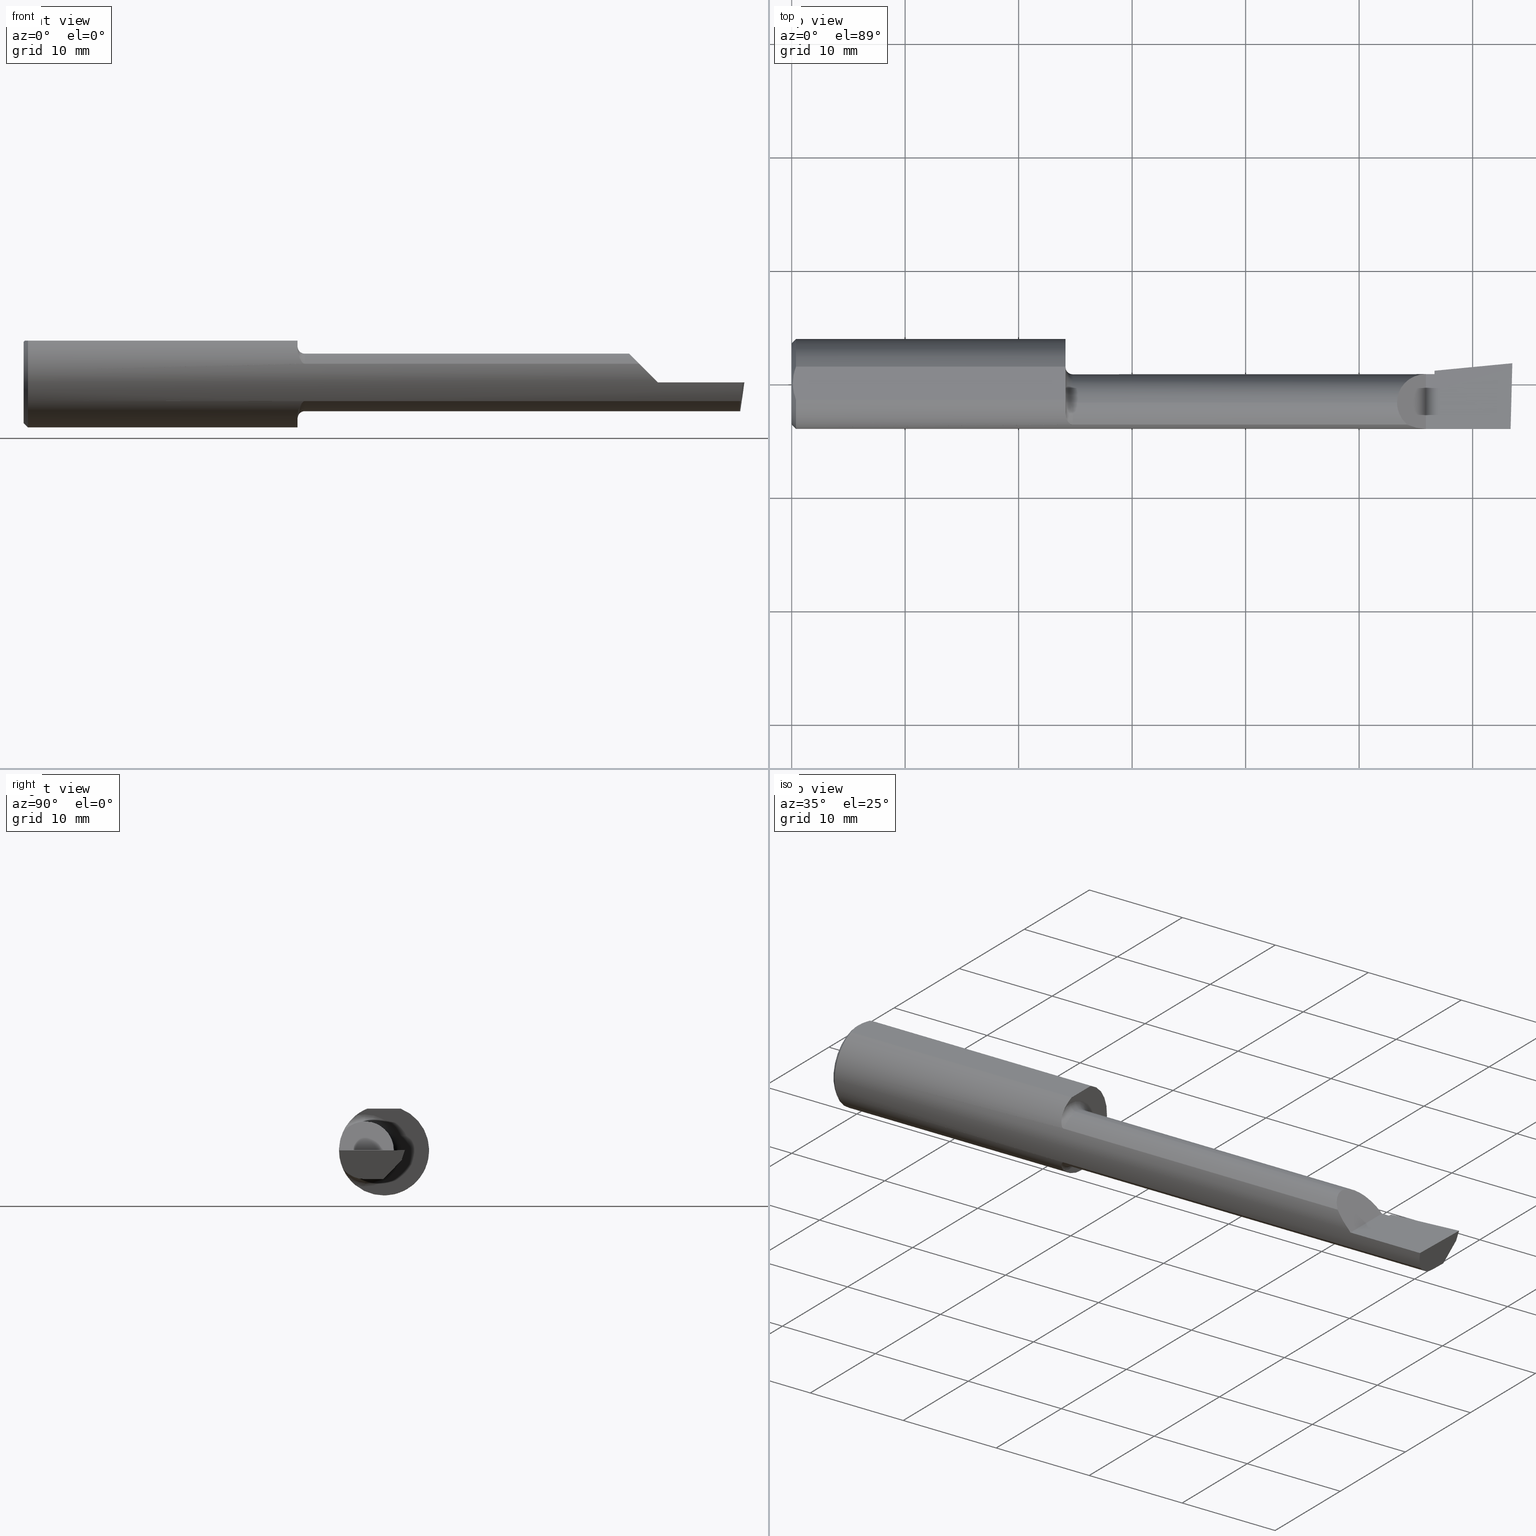
[diagram: canonical four-view strip — front | top / right | iso, engineering-drawing reading convention]
A machine part, canonical four-view strip (front | top / right | iso — engineering-drawing reading convention). The complete STEP part file that produces these views, byte-faithful:
ISO-10303-21;
HEADER;
FILE_DESCRIPTION (( 'STEP AP203' ),
    '1' );
FILE_NAME ('217423-B2301500.STEP',
    '2024-04-25T16:52:27',
    ( '' ),
    ( '' ),
    'SwSTEP 2.0',
    'SolidWorks 2022',
    '' );
FILE_SCHEMA (( 'CONFIG_CONTROL_DESIGN' ));
ENDSEC;

DATA;
#1 = VECTOR ( 'NONE', #458, 39.37007874015748143 ) ;
#2 = LOCAL_TIME ( 9, 52, 27.00000000000000000, #137 ) ;
#3 = FACE_OUTER_BOUND ( 'NONE', #428, .T. ) ;
#4 = CARTESIAN_POINT ( 'NONE',  ( 0.9717256991359958240, -0.1417275062431947175, -0.06543227863119793764 ) ) ;
#5 = ORIENTED_EDGE ( 'NONE', *, *, #26, .F. ) ;
#6 = LINE ( 'NONE', #12, #1 ) ;
#7 = DIMENSIONAL_EXPONENTS ( 1.000000000000000000, 0.000000000000000000, 0.000000000000000000, 0.000000000000000000, 0.000000000000000000, 0.000000000000000000, 0.000000000000000000 ) ;
#8 = CARTESIAN_POINT ( 'NONE',  ( 0.004000000000000238608, 1.884449684559922719E-17, 0.1450999999999999790 ) ) ;
#9 = ORIENTED_EDGE ( 'NONE', *, *, #389, .T. ) ;
#10 = ADVANCED_FACE ( 'NONE', ( #250 ), #425, .F. ) ;
#11 = TOROIDAL_SURFACE ( 'NONE', #427, 0.1248999999999998584, 0.02500000000000000486 ) ;
#12 = CARTESIAN_POINT ( 'NONE',  ( 0.9499999999999999556, 0.2061000000000000332, 0.1450999999999999512 ) ) ;
#13 = LINE ( 'NONE', #237, #269 ) ;
#14 = ORIENTED_EDGE ( 'NONE', *, *, #187, .T. ) ;
#15 = DIRECTION ( 'NONE',  ( 0.000000000000000000, 0.6963153109074924352, 0.7177360153954949196 ) ) ;
#16 = DIRECTION ( 'NONE',  ( 0.000000000000000000, 0.000000000000000000, -1.000000000000000000 ) ) ;
#17 = ORIENTED_EDGE ( 'NONE', *, *, #89, .F. ) ;
#18 = AXIS2_PLACEMENT_3D ( 'NONE', #97, #707, #608 ) ;
#19 = VECTOR ( 'NONE', #675, 39.37007874015748143 ) ;
#20 = MECHANICAL_CONTEXT ( 'NONE', #149, 'mechanical' ) ;
#21 = CARTESIAN_POINT ( 'NONE',  ( 0.9586820903407829997, -0.1330572531291642768, -0.08183785561185233370 ) ) ;
#22 = ORIENTED_EDGE ( 'NONE', *, *, #610, .F. ) ;
#23 = MANIFOLD_SOLID_BREP ( 'Extrude7', #91 ) ;
#24 = PERSON_AND_ORGANIZATION ( #181, #683 ) ;
#25 = AXIS2_PLACEMENT_3D ( 'NONE', #147, #376, #603 ) ;
#26 = EDGE_CURVE ( 'NONE', #582, #37, #449, .T. ) ;
#27 = CARTESIAN_POINT ( 'NONE',  ( 2.491270569402206814, -0.1560999999999999888, -0.02246288137099515872 ) ) ;
#28 = ORIENTED_EDGE ( 'NONE', *, *, #177, .F. ) ;
#29 = CARTESIAN_POINT ( 'NONE',  ( 2.486434241799652778, -0.1419939393939394223, -0.06484544066771577575 ) ) ;
#30 = ORIENTED_EDGE ( 'NONE', *, *, #377, .F. ) ;
#31 = VECTOR ( 'NONE', #329, 39.37007874015748854 ) ;
#32 = APPROVAL_DATE_TIME ( #87, #382 ) ;
#33 = DIRECTION ( 'NONE',  ( 0.000000000000000000, 0.000000000000000000, 1.000000000000000000 ) ) ;
#34 = VERTEX_POINT ( 'NONE', #51 ) ;
#35 = EDGE_CURVE ( 'NONE', #301, #141, #157, .T. ) ;
#36 = PLANE ( 'NONE',  #669 ) ;
#37 = VERTEX_POINT ( 'NONE', #384 ) ;
#38 = CC_DESIGN_PERSON_AND_ORGANIZATION_ASSIGNMENT ( #24, #92, ( #477 ) ) ;
#39 = PRODUCT_DEFINITION_SHAPE ( 'NONE', 'NONE',  #434 ) ;
#40 = EDGE_LOOP ( 'NONE', ( #400, #14, #661, #130 ) ) ;
#41 = DATE_TIME_ROLE ( 'classification_date' ) ;
#42 = CARTESIAN_POINT ( 'NONE',  ( 0.01499999999999999424, 0.000000000000000000, -0.1560999999999999888 ) ) ;
#43 = LOCAL_TIME ( 9, 52, 27.00000000000000000, #598 ) ;
#44 = ORIENTED_EDGE ( 'NONE', *, *, #104, .F. ) ;
#45 = VERTEX_POINT ( 'NONE', #333 ) ;
#46 = CIRCLE ( 'NONE', #651, 0.1560999999999999888 ) ;
#47 = FACE_OUTER_BOUND ( 'NONE', #708, .T. ) ;
#48 = CARTESIAN_POINT ( 'NONE',  ( 2.491576527842699562, -0.2497794236187493022, 6.912943690626119343E-17 ) ) ;
#49 = CARTESIAN_POINT ( 'NONE',  ( 0.000000000000000000, -0.06599999999999998923, -0.09989999999999993330 ) ) ;
#50 = EDGE_CURVE ( 'NONE', #660, #640, #114, .T. ) ;
#51 = CARTESIAN_POINT ( 'NONE',  ( 2.484118579027821294, -0.06599999999999998923, -0.09990000000000000269 ) ) ;
#52 = CARTESIAN_POINT ( 'NONE',  ( 0.01499999999999999424, 0.000000000000000000, -0.1560999999999999888 ) ) ;
#53 = CARTESIAN_POINT ( 'NONE',  ( 0.01499999999999999424, 0.05756040305626779902, 0.1450999999999999512 ) ) ;
#54 = CARTESIAN_POINT ( 'NONE',  ( 0.9520405068644911539, -0.1180407066556271450, 0.1023492120876694778 ) ) ;
#55 = AXIS2_PLACEMENT_3D ( 'NONE', #213, #733, #616 ) ;
#56 = CARTESIAN_POINT ( 'NONE',  ( 2.229999999999999982, -0.06599999999999998923, -0.09990000000000000269 ) ) ;
#57 = EDGE_CURVE ( 'NONE', #660, #189, #378, .T. ) ;
#58 = FACE_OUTER_BOUND ( 'NONE', #374, .T. ) ;
#59 = LINE ( 'NONE', #347, #721 ) ;
#60 = CIRCLE ( 'NONE', #25, 0.1248999999999998584 ) ;
#61 = CARTESIAN_POINT ( 'NONE',  ( 0.9749999999999999778, -0.1419939393939395333, -0.06484544066771551207 ) ) ;
#62 = DIRECTION ( 'NONE',  ( -1.000000000000000000, -0.000000000000000000, -0.000000000000000000 ) ) ;
#63 = VECTOR ( 'NONE', #703, 39.37007874015748143 ) ;
#64 = ORIENTED_EDGE ( 'NONE', *, *, #672, .F. ) ;
#65 = DIRECTION ( 'NONE',  ( -0.06894566448119622548, 0.7160281025913035613, -0.6946583704589933683 ) ) ;
#66 = EDGE_CURVE ( 'NONE', #488, #605, #568, .T. ) ;
#67 = CARTESIAN_POINT ( 'NONE',  ( 2.200000000000000178, -0.2500000000000000555, 9.797174393178826150E-17 ) ) ;
#68 = ORIENTED_EDGE ( 'NONE', *, *, #397, .F. ) ;
#69 = LINE ( 'NONE', #702, #411 ) ;
#70 = CARTESIAN_POINT ( 'NONE',  ( 0.000000000000000000, 1.819825143532964315E-17, 0.1410999999999996146 ) ) ;
#71 = EDGE_CURVE ( 'NONE', #244, #301, #531, .T. ) ;
#72 = EDGE_LOOP ( 'NONE', ( #609, #691, #86, #221, #538, #153 ) ) ;
#73 = AXIS2_PLACEMENT_3D ( 'NONE', #319, #197, #303 ) ;
#74 = LINE ( 'NONE', #580, #281 ) ;
#75 = CARTESIAN_POINT ( 'NONE',  ( 0.9749999999999999778, -0.1419939393939395333, -0.06484544066771551207 ) ) ;
#76 = ORIENTED_EDGE ( 'NONE', *, *, #50, .T. ) ;
#77 = CALENDAR_DATE ( 2024, 25, 4 ) ;
#78 = DIRECTION ( 'NONE',  ( 0.000000000000000000, 0.000000000000000000, -1.000000000000000000 ) ) ;
#79 = ORIENTED_EDGE ( 'NONE', *, *, #527, .F. ) ;
#80 = CONICAL_SURFACE ( 'NONE', #172, 0.1560999999999999888, 0.7853981633974602694 ) ;
#81 = EDGE_CURVE ( 'NONE', #37, #513, #163, .T. ) ;
#82 = CARTESIAN_POINT ( 'NONE',  ( 2.486434241799652778, -0.1419939393939394223, -0.06484544066771577575 ) ) ;
#83 = VERTEX_POINT ( 'NONE', #396 ) ;
#84 = PERSON_AND_ORGANIZATION_ROLE ( 'creator' ) ;
#85 = CARTESIAN_POINT ( 'NONE',  ( 0.9499999999999999556, -0.06599999999999998923, 0.000000000000000000 ) ) ;
#86 = ORIENTED_EDGE ( 'NONE', *, *, #638, .T. ) ;
#87 = DATE_AND_TIME ( #77, #43 ) ;
#88 = CARTESIAN_POINT ( 'NONE',  ( 0.000000000000000000, -0.06599999999999998923, 0.000000000000000000 ) ) ;
#89 = EDGE_CURVE ( 'NONE', #321, #622, #509, .T. ) ;
#90 = VERTEX_POINT ( 'NONE', #388 ) ;
#91 = CLOSED_SHELL ( 'NONE', ( #297, #355, #731, #710, #206, #146, #563, #695, #404, #464, #287, #537, #239, #276, #643, #554, #739, #544, #586, #618, #10 ) ) ;
#92 = PERSON_AND_ORGANIZATION_ROLE ( 'design_owner' ) ;
#93 = AXIS2_PLACEMENT_3D ( 'NONE', #174, #401, #286 ) ;
#94 = CYLINDRICAL_SURFACE ( 'NONE', #591, 0.1560999999999999888 ) ;
#95 = ORIENTED_EDGE ( 'NONE', *, *, #722, .F. ) ;
#96 = VERTEX_POINT ( 'NONE', #278 ) ;
#97 = CARTESIAN_POINT ( 'NONE',  ( 0.000000000000000000, -0.06599999999999998923, 0.000000000000000000 ) ) ;
#98 = ORIENTED_EDGE ( 'NONE', *, *, #672, .T. ) ;
#99 = VERTEX_POINT ( 'NONE', #556 ) ;
#100 = AXIS2_PLACEMENT_3D ( 'NONE', #409, #65, #15 ) ;
#101 = CARTESIAN_POINT ( 'NONE',  ( 0.9630170922746255080, -0.1374043365808048089, 0.07413505991998627087 ) ) ;
#102 = CARTESIAN_POINT ( 'NONE',  ( 1.602499999999999813, -0.1419939393939394223, -0.06484544066771577575 ) ) ;
#103 = PERSON_AND_ORGANIZATION_ROLE ( 'classification_officer' ) ;
#104 = EDGE_CURVE ( 'NONE', #379, #96, #339, .T. ) ;
#105 = DIRECTION ( 'NONE',  ( -1.000000000000000000, -0.000000000000000000, -0.000000000000000000 ) ) ;
#106 = LINE ( 'NONE', #48, #316 ) ;
#107 = CARTESIAN_POINT ( 'NONE',  ( 0.9499999999999999556, -0.06599999999999997535, -0.1248999999999998584 ) ) ;
#108 = CIRCLE ( 'NONE', #520, 0.09989999999999985003 ) ;
#109 = DIRECTION ( 'NONE',  ( 0.000000000000000000, 1.000000000000000000, 0.000000000000000000 ) ) ;
#110 = LINE ( 'NONE', #52, #476 ) ;
#111 = CARTESIAN_POINT ( 'NONE',  ( 0.01499999999999999424, 0.000000000000000000, 0.000000000000000000 ) ) ;
#112 = EDGE_CURVE ( 'NONE', #644, #99, #505, .T. ) ;
#113 = DIRECTION ( 'NONE',  ( -0.09165774897393341725, 0.9519021185660614393, -0.2923717047227302190 ) ) ;
#114 = LINE ( 'NONE', #218, #635 ) ;
#115 = ORIENTED_EDGE ( 'NONE', *, *, #397, .T. ) ;
#116 = EDGE_CURVE ( 'NONE', #96, #379, #447, .T. ) ;
#117 = DIRECTION ( 'NONE',  ( -1.000000000000000000, 0.000000000000000000, -0.000000000000000000 ) ) ;
#118 = LINE ( 'NONE', #300, #241 ) ;
#119 = CIRCLE ( 'NONE', #441, 0.09990000000000000269 ) ;
#120 = CARTESIAN_POINT ( 'NONE',  ( 2.500000000000000000, -0.06599999999999998923, -0.09990000000000000269 ) ) ;
#121 = CARTESIAN_POINT ( 'NONE',  ( 0.9733182172575656210, -0.1419939393939396166, -0.06484544066771549820 ) ) ;
#122 = ORIENTED_EDGE ( 'NONE', *, *, #50, .F. ) ;
#123 = CARTESIAN_POINT ( 'NONE',  ( 0.01499999999999999424, -0.05756040305626774350, 0.1451000000000000068 ) ) ;
#124 = EDGE_CURVE ( 'NONE', #513, #379, #391, .T. ) ;
#125 = VECTOR ( 'NONE', #109, 39.37007874015748143 ) ;
#126 = CARTESIAN_POINT ( 'NONE',  ( 2.229999999999999982, -0.06599999999999998923, 0.000000000000000000 ) ) ;
#127 = ORIENTED_EDGE ( 'NONE', *, *, #279, .F. ) ;
#128 = DIRECTION ( 'NONE',  ( -1.000000000000000000, -0.000000000000000000, -0.000000000000000000 ) ) ;
#129 = DIRECTION ( 'NONE',  ( 1.000000000000000000, 0.000000000000000000, 0.000000000000000000 ) ) ;
#130 = ORIENTED_EDGE ( 'NONE', *, *, #165, .F. ) ;
#131 = CARTESIAN_POINT ( 'NONE',  ( 2.229999999999999982, 0.03390000000000001346, 3.155924005931208275E-16 ) ) ;
#132 = LINE ( 'NONE', #67, #699 ) ;
#133 = ORIENTED_EDGE ( 'NONE', *, *, #444, .F. ) ;
#134 = EDGE_CURVE ( 'NONE', #413, #432, #106, .T. ) ;
#135 = AXIS2_PLACEMENT_3D ( 'NONE', #736, #559, #729 ) ;
#136 = SECURITY_CLASSIFICATION ( '', '', #472 ) ;
#137 = COORDINATED_UNIVERSAL_TIME_OFFSET ( 8, 0, .BEHIND. ) ;
#138 = VERTEX_POINT ( 'NONE', #273 ) ;
#139 = VECTOR ( 'NONE', #198, 39.37007874015748854 ) ;
#140 = DIRECTION ( 'NONE',  ( -1.000000000000000000, -0.000000000000000000, -0.000000000000000000 ) ) ;
#141 = VERTEX_POINT ( 'NONE', #619 ) ;
#142 = DATE_AND_TIME ( #490, #2 ) ;
#143 = EDGE_CURVE ( 'NONE', #176, #640, #514, .T. ) ;
#144 = CARTESIAN_POINT ( 'NONE',  ( 2.494029609882220111, -0.1561000000000000165, 6.889038570631858091E-17 ) ) ;
#145 = ORIENTED_EDGE ( 'NONE', *, *, #253, .F. ) ;
#146 = ADVANCED_FACE ( 'NONE', ( #336 ), #451, .T. ) ;
#147 = CARTESIAN_POINT ( 'NONE',  ( 0.9499999999999999556, -0.06599999999999998923, 0.000000000000000000 ) ) ;
#148 = ORIENTED_EDGE ( 'NONE', *, *, #57, .F. ) ;
#149 = APPLICATION_CONTEXT ( 'configuration controlled 3d designs of mechanical parts and assemblies' ) ;
#150 = ORIENTED_EDGE ( 'NONE', *, *, #104, .T. ) ;
#151 = COORDINATED_UNIVERSAL_TIME_OFFSET ( 8, 0, .BEHIND. ) ;
#152 = CARTESIAN_POINT ( 'NONE',  ( 0.000000000000000000, 0.000000000000000000, 0.000000000000000000 ) ) ;
#153 = ORIENTED_EDGE ( 'NONE', *, *, #311, .T. ) ;
#154 = CALENDAR_DATE ( 2024, 25, 4 ) ;
#155 = CARTESIAN_POINT ( 'NONE',  ( 0.004000000000000188301, -0.009851916903761191377, 0.1450999999999999512 ) ) ;
#156 = AXIS2_PLACEMENT_3D ( 'NONE', #448, #272, #335 ) ;
#157 = LINE ( 'NONE', #730, #662 ) ;
#158 = EDGE_CURVE ( 'NONE', #582, #99, #59, .T. ) ;
#159 = SHAPE_DEFINITION_REPRESENTATION ( #39, #517 ) ;
#160 = CARTESIAN_POINT ( 'NONE',  ( 0.9678084285893293615, -0.1404263024719113739, 0.06818548243543413878 ) ) ;
#161 = DIRECTION ( 'NONE',  ( 0.1053106618240755854, 0.6976485211320196944, 0.7086580314005346271 ) ) ;
#162 = CARTESIAN_POINT ( 'NONE',  ( 0.9586659046592507227, -0.1330436853938333774, 0.08186319721956611395 ) ) ;
#163 = LINE ( 'NONE', #443, #31 ) ;
#164 = CARTESIAN_POINT ( 'NONE',  ( 0.9499999999999998446, -0.1044500923568691536, 0.1161894481365068482 ) ) ;
#165 = EDGE_CURVE ( 'NONE', #682, #379, #468, .T. ) ;
#166 = CARTESIAN_POINT ( 'NONE',  ( 2.200000000000000178, -0.1560999999999999888, 9.797174393178826150E-17 ) ) ;
#167 = CARTESIAN_POINT ( 'NONE',  ( 0.01161840624095555018, -0.04838974479540033430, 0.1451000000000000345 ) ) ;
#168 = CC_DESIGN_DATE_AND_TIME_ASSIGNMENT ( #142, #202, ( #434 ) ) ;
#169 = CARTESIAN_POINT ( 'NONE',  ( 2.229999999999999982, 0.04590195698666438284, 0.000000000000000000 ) ) ;
#170 = ORIENTED_EDGE ( 'NONE', *, *, #502, .T. ) ;
#171 = DIRECTION ( 'NONE',  ( 0.000000000000000000, 0.000000000000000000, -1.000000000000000000 ) ) ;
#172 = AXIS2_PLACEMENT_3D ( 'NONE', #459, #129, #16 ) ;
#173 = DIRECTION ( 'NONE',  ( 0.000000000000000000, -0.2936076258024059027, -0.9559260233253795702 ) ) ;
#174 = CARTESIAN_POINT ( 'NONE',  ( 0.9749999999999999778, -0.06599999999999998923, 0.000000000000000000 ) ) ;
#175 = DIRECTION ( 'NONE',  ( 1.000000000000000000, 0.000000000000000000, 0.000000000000000000 ) ) ;
#176 = VERTEX_POINT ( 'NONE', #578 ) ;
#177 = EDGE_CURVE ( 'NONE', #45, #271, #408, .T. ) ;
#178 = CARTESIAN_POINT ( 'NONE',  ( 2.229999999999999982, -0.06599999999999998923, -0.09990000000000000269 ) ) ;
#179 = PLANE ( 'NONE',  #567 ) ;
#180 = ORIENTED_EDGE ( 'NONE', *, *, #676, .F. ) ;
#181 = PERSON ( 'UNSPECIFIED', 'UNSPECIFIED', 'UNSPECIFIED', ('UNSPECIFIED'), ('UNSPECIFIED'), ('UNSPECIFIED') ) ;
#182 = FACE_OUTER_BOUND ( 'NONE', #324, .T. ) ;
#183 = CARTESIAN_POINT ( 'NONE',  ( 0.9565900107095250959, -0.1296703571699489577, -0.08713627291423967081 ) ) ;
#184 = ORIENTED_EDGE ( 'NONE', *, *, #485, .F. ) ;
#185 = TOROIDAL_SURFACE ( 'NONE', #93, 0.1248999999999998584, 0.02500000000000000486 ) ;
#186 = CARTESIAN_POINT ( 'NONE',  ( 0.9749999999999999778, -0.06599999999999998923, 0.1248999999999998584 ) ) ;
#187 = EDGE_CURVE ( 'NONE', #90, #513, #13, .T. ) ;
#188 = FACE_OUTER_BOUND ( 'NONE', #195, .T. ) ;
#189 = VERTEX_POINT ( 'NONE', #512 ) ;
#190 = FACE_OUTER_BOUND ( 'NONE', #344, .T. ) ;
#191 = VERTEX_POINT ( 'NONE', #70 ) ;
#192 = AXIS2_PLACEMENT_3D ( 'NONE', #209, #212, #617 ) ;
#193 = CARTESIAN_POINT ( 'NONE',  ( 0.000000000000000000, 0.000000000000000000, 0.000000000000000000 ) ) ;
#194 = CARTESIAN_POINT ( 'NONE',  ( 2.229999999999999982, 0.02031953758082113634, -0.05028864118101816771 ) ) ;
#195 = EDGE_LOOP ( 'NONE', ( #180, #420, #68, #593, #352, #489 ) ) ;
#196 = EDGE_CURVE ( 'NONE', #321, #34, #564, .T. ) ;
#197 = DIRECTION ( 'NONE',  ( -1.000000000000000000, -0.000000000000000000, -0.000000000000000000 ) ) ;
#198 = DIRECTION ( 'NONE',  ( -0.02617694830780365259, -0.9996573249755590362, 0.000000000000000000 ) ) ;
#199 = ORIENTED_EDGE ( 'NONE', *, *, #718, .F. ) ;
#200 = CARTESIAN_POINT ( 'NONE',  ( 2.229999999999999982, -0.2500000000000000555, 9.500418952277011559E-17 ) ) ;
#201 = ORIENTED_EDGE ( 'NONE', *, *, #177, .T. ) ;
#202 = DATE_TIME_ROLE ( 'creation_date' ) ;
#203 = DIRECTION ( 'NONE',  ( -9.891848030060559526E-17, 0.000000000000000000, -1.000000000000000000 ) ) ;
#204 = VERTEX_POINT ( 'NONE', #351 ) ;
#205 = CARTESIAN_POINT ( 'NONE',  ( 0.008818052469297050708, -0.03886761757380372689, 0.1451000000000000068 ) ) ;
#206 = ADVANCED_FACE ( 'NONE', ( #295 ), #80, .T. ) ;
#207 = ORIENTED_EDGE ( 'NONE', *, *, #676, .T. ) ;
#208 = EDGE_LOOP ( 'NONE', ( #530, #657 ) ) ;
#209 = CARTESIAN_POINT ( 'NONE',  ( 2.200000000000000178, -0.2500000000000000555, 9.797174393178826150E-17 ) ) ;
#210 = VECTOR ( 'NONE', #105, 39.37007874015748143 ) ;
#211 = DIRECTION ( 'NONE',  ( 0.000000000000000000, -0.6963153109074924352, -0.7177360153954949196 ) ) ;
#212 = DIRECTION ( 'NONE',  ( -0.7071067811865436870, 0.000000000000000000, -0.7071067811865513475 ) ) ;
#213 = CARTESIAN_POINT ( 'NONE',  ( 0.9749999999999999778, -0.06599999999999998923, 0.000000000000000000 ) ) ;
#214 = EDGE_CURVE ( 'NONE', #301, #488, #590, .T. ) ;
#215 = VECTOR ( 'NONE', #211, 39.37007874015748143 ) ;
#216 = LINE ( 'NONE', #565, #248 ) ;
#217 = AXIS2_PLACEMENT_3D ( 'NONE', #629, #299, #576 ) ;
#218 = CARTESIAN_POINT ( 'NONE',  ( 1.602499999999999813, -0.1419939393939394223, 0.06484544066771577575 ) ) ;
#219 = CARTESIAN_POINT ( 'NONE',  ( 0.9689884841392603088, -0.1409410548628160786, 0.06710952210203005586 ) ) ;
#220 = CARTESIAN_POINT ( 'NONE',  ( 2.135154559332283597, -0.1419939393939393946, 0.06484544066771577575 ) ) ;
#221 = ORIENTED_EDGE ( 'NONE', *, *, #369, .T. ) ;
#222 = CARTESIAN_POINT ( 'NONE',  ( 0.9499999999999999556, 0.000000000000000000, 0.000000000000000000 ) ) ;
#223 = CIRCLE ( 'NONE', #510, 0.1410999999999996146 ) ;
#224 = DIRECTION ( 'NONE',  ( -0.9922060308645596072, 0.02598182930462459433, 0.1218693434050663049 ) ) ;
#225 = APPROVAL_PERSON_ORGANIZATION ( #322, #283, #666 ) ;
#226 = ORIENTED_EDGE ( 'NONE', *, *, #196, .T. ) ;
#227 = DIRECTION ( 'NONE',  ( -1.000000000000000000, 5.691349986800549142E-18, -0.000000000000000000 ) ) ;
#228 = AXIS2_PLACEMENT_3D ( 'NONE', #85, #249, #366 ) ;
#229 = CARTESIAN_POINT ( 'NONE',  ( 0.9689870864409554363, -0.1409404987250980901, -0.06711069163632675527 ) ) ;
#230 = EDGE_CURVE ( 'NONE', #176, #271, #132, .T. ) ;
#231 = ORIENTED_EDGE ( 'NONE', *, *, #410, .F. ) ;
#232 = PLANE ( 'NONE',  #734 ) ;
#233 = CARTESIAN_POINT ( 'NONE',  ( 2.483340380677748538, -0.09571819601686558376, -0.09989999999999997493 ) ) ;
#234 = ORIENTED_EDGE ( 'NONE', *, *, #496, .T. ) ;
#235 =( BOUNDED_CURVE ( )  B_SPLINE_CURVE ( 3, ( #251, #487, #491, #255 ),
 .UNSPECIFIED., .F., .T. ) 
 B_SPLINE_CURVE_WITH_KNOTS ( ( 4, 4 ),
 ( 5.418794317430680074, 6.283185307179586232 ),
 .UNSPECIFIED. ) 
 CURVE ( )  GEOMETRIC_REPRESENTATION_ITEM ( )  RATIONAL_B_SPLINE_CURVE ( ( 1.000000000000000000, 0.9386988813357770578, 0.9386988813357770578, 1.000000000000000000 ) ) 
 REPRESENTATION_ITEM ( '' )  );
#236 = PLANE ( 'NONE',  #325 ) ;
#237 = CARTESIAN_POINT ( 'NONE',  ( 2.229999999999999982, 0.04248346027991098395, -0.01112992196204301391 ) ) ;
#238 = ORIENTED_EDGE ( 'NONE', *, *, #473, .T. ) ;
#239 = ADVANCED_FACE ( 'NONE', ( #362 ), #179, .F. ) ;
#240 = DIRECTION ( 'NONE',  ( -1.000000000000000000, -0.000000000000000000, -0.000000000000000000 ) ) ;
#241 = VECTOR ( 'NONE', #574, 39.37007874015748854 ) ;
#242 = AXIS2_PLACEMENT_3D ( 'NONE', #111, #560, #285 ) ;
#243 = DIRECTION ( 'NONE',  ( 1.000000000000000000, 0.000000000000000000, 0.000000000000000000 ) ) ;
#244 = VERTEX_POINT ( 'NONE', #8 ) ;
#245 = CYLINDRICAL_SURFACE ( 'NONE', #73, 0.09989999999999993330 ) ;
#246 = PLANE ( 'NONE',  #479 ) ;
#247 = ORIENTED_EDGE ( 'NONE', *, *, #430, .F. ) ;
#248 = VECTOR ( 'NONE', #277, 39.37007874015748143 ) ;
#249 = DIRECTION ( 'NONE',  ( -1.000000000000000000, -0.000000000000000000, -0.000000000000000000 ) ) ;
#250 = FACE_OUTER_BOUND ( 'NONE', #317, .T. ) ;
#251 = CARTESIAN_POINT ( 'NONE',  ( 2.135154559332283597, -0.1419939393939393946, 0.06484544066771577575 ) ) ;
#252 = ORIENTED_EDGE ( 'NONE', *, *, #311, .F. ) ;
#253 = EDGE_CURVE ( 'NONE', #37, #432, #118, .T. ) ;
#254 = PERSON_AND_ORGANIZATION ( #181, #683 ) ;
#255 = CARTESIAN_POINT ( 'NONE',  ( 2.100099999999998968, -0.06599999999999998923, 0.09989999999999993330 ) ) ;
#256 = EDGE_LOOP ( 'NONE', ( #293, #133, #371, #698 ) ) ;
#257 = ORIENTED_EDGE ( 'NONE', *, *, #502, .F. ) ;
#258 = DATE_AND_TIME ( #365, #364 ) ;
#259 = CARTESIAN_POINT ( 'NONE',  ( 2.500000000000000000, 0.2061000000000000332, 0.1450999999999999512 ) ) ;
#260 = CC_DESIGN_SECURITY_CLASSIFICATION ( #136, ( #647 ) ) ;
#261 = B_SPLINE_CURVE_WITH_KNOTS ( 'NONE', 3,
 ( #680, #167, #205, #445, #155, #674 ),
 .UNSPECIFIED., .F., .F.,
 ( 4, 2, 4 ),
 ( 0.001402484879066372495, 0.002145844412013350570, 0.002889203944960327779 ),
 .UNSPECIFIED. ) ;
#262 = ORIENTED_EDGE ( 'NONE', *, *, #89, .T. ) ;
#263 = EDGE_LOOP ( 'NONE', ( #579, #306, #492, #407, #201, #363, #403, #296 ) ) ;
#264 = EDGE_CURVE ( 'NONE', #622, #634, #457, .T. ) ;
#265 = CC_DESIGN_APPROVAL ( #507, ( #434 ) ) ;
#266 = DESIGN_CONTEXT ( 'detailed design', #659, 'design' ) ;
#267 = CARTESIAN_POINT ( 'NONE',  ( 0.9646665162895929901, -0.1387430930441310994, 0.07158177069671466108 ) ) ;
#268 = ORIENTED_EDGE ( 'NONE', *, *, #577, .F. ) ;
#269 = VECTOR ( 'NONE', #173, 39.37007874015748854 ) ;
#270 = VECTOR ( 'NONE', #380, 39.37007874015748143 ) ;
#271 = VERTEX_POINT ( 'NONE', #412 ) ;
#272 = DIRECTION ( 'NONE',  ( -1.000000000000000000, -0.000000000000000000, -0.000000000000000000 ) ) ;
#273 = CARTESIAN_POINT ( 'NONE',  ( 0.9499999999999999556, -0.09941818181818204425, 0.1203463132961159199 ) ) ;
#274 = DIRECTION ( 'NONE',  ( 0.000000000000000000, -1.656870447394628111E-16, -1.000000000000000000 ) ) ;
#275 = DIRECTION ( 'NONE',  ( 1.000000000000000000, 0.000000000000000000, 0.000000000000000000 ) ) ;
#276 = ADVANCED_FACE ( 'NONE', ( #406 ), #436, .T. ) ;
#277 = DIRECTION ( 'NONE',  ( 0.7071067811865390240, 8.659560562355036396E-17, 0.7071067811865560104 ) ) ;
#278 = CARTESIAN_POINT ( 'NONE',  ( 2.229999999999999982, -0.01311981690363728248, -0.08475668844224119869 ) ) ;
#279 = EDGE_CURVE ( 'NONE', #96, #99, #639, .T. ) ;
#280 = FACE_OUTER_BOUND ( 'NONE', #381, .T. ) ;
#281 = VECTOR ( 'NONE', #128, 39.37007874015748143 ) ;
#282 = CARTESIAN_POINT ( 'NONE',  ( 2.229999999999999982, -0.06599999999999998923, 0.000000000000000000 ) ) ;
#283 = APPROVAL ( #386, 'UNSPECIFIED' ) ;
#284 = ORIENTED_EDGE ( 'NONE', *, *, #187, .F. ) ;
#285 = DIRECTION ( 'NONE',  ( 0.000000000000000000, 0.000000000000000000, 1.000000000000000000 ) ) ;
#286 = DIRECTION ( 'NONE',  ( 0.000000000000000000, 0.000000000000000000, 1.000000000000000000 ) ) ;
#287 = ADVANCED_FACE ( 'NONE', ( #188 ), #246, .F. ) ;
#288 = AXIS2_PLACEMENT_3D ( 'NONE', #393, #723, #620 ) ;
#289 = CARTESIAN_POINT ( 'NONE',  ( 2.100099999999998523, -0.007479934881072251331, 0.09989999999999994718 ) ) ;
#290 = ORIENTED_EDGE ( 'NONE', *, *, #26, .T. ) ;
#291 = DIRECTION ( 'NONE',  ( 0.000000000000000000, -1.000000000000000000, 0.000000000000000000 ) ) ;
#292 = DIRECTION ( 'NONE',  ( 0.000000000000000000, 0.000000000000000000, 1.000000000000000000 ) ) ;
#293 = ORIENTED_EDGE ( 'NONE', *, *, #654, .F. ) ;
#294 = DIRECTION ( 'NONE',  ( -1.000000000000000000, -0.000000000000000000, -0.000000000000000000 ) ) ;
#295 = FACE_OUTER_BOUND ( 'NONE', #548, .T. ) ;
#296 = ORIENTED_EDGE ( 'NONE', *, *, #116, .F. ) ;
#297 = ADVANCED_FACE ( 'NONE', ( #312 ), #536, .T. ) ;
#298 = CC_DESIGN_APPROVAL ( #283, ( #136 ) ) ;
#299 = DIRECTION ( 'NONE',  ( -0.000000000000000000, 1.000000000000000000, 1.224646799147353207E-16 ) ) ;
#300 = CARTESIAN_POINT ( 'NONE',  ( 2.500188977433790871, 0.07236059946466678883, 0.001440373173039672869 ) ) ;
#301 = VERTEX_POINT ( 'NONE', #549 ) ;
#302 = CC_DESIGN_PERSON_AND_ORGANIZATION_ASSIGNMENT ( #310, #84, ( #434 ) ) ;
#303 = DIRECTION ( 'NONE',  ( 0.000000000000000000, 0.000000000000000000, 1.000000000000000000 ) ) ;
#304 = AXIS2_PLACEMENT_3D ( 'NONE', #169, #343, #570 ) ;
#305 = CC_DESIGN_PERSON_AND_ORGANIZATION_ASSIGNMENT ( #314, #587, ( #647 ) ) ;
#306 = ORIENTED_EDGE ( 'NONE', *, *, #527, .T. ) ;
#307 = APPROVAL_DATE_TIME ( #258, #507 ) ;
#308 = CARTESIAN_POINT ( 'NONE',  ( 2.488699611492194208, -0.1513252362624135372, -0.04441242967472189968 ) ) ;
#309 = ORIENTED_EDGE ( 'NONE', *, *, #264, .F. ) ;
#310 = PERSON_AND_ORGANIZATION ( #181, #683 ) ;
#311 = EDGE_CURVE ( 'NONE', #467, #634, #367, .T. ) ;
#312 = FACE_OUTER_BOUND ( 'NONE', #263, .T. ) ;
#313 = ORIENTED_EDGE ( 'NONE', *, *, #81, .T. ) ;
#314 = PERSON_AND_ORGANIZATION ( #181, #683 ) ;
#315 = CARTESIAN_POINT ( 'NONE',  ( 2.229999999999999982, -0.06599999999999998923, 0.000000000000000000 ) ) ;
#316 = VECTOR ( 'NONE', #499, 39.37007874015748854 ) ;
#317 = EDGE_LOOP ( 'NONE', ( #226, #589, #290, #694, #360, #326 ) ) ;
#318 = VECTOR ( 'NONE', #696, 39.37007874015748143 ) ;
#319 = CARTESIAN_POINT ( 'NONE',  ( 0.000000000000000000, -0.06599999999999998923, 0.000000000000000000 ) ) ;
#320 = LINE ( 'NONE', #200, #348 ) ;
#321 = VERTEX_POINT ( 'NONE', #29 ) ;
#322 = PERSON_AND_ORGANIZATION ( #181, #683 ) ;
#323 = CARTESIAN_POINT ( 'NONE',  ( 0.9499999999999999556, -0.06599999999999998923, 0.000000000000000000 ) ) ;
#324 = EDGE_LOOP ( 'NONE', ( #716, #9, #98, #606 ) ) ;
#325 = AXIS2_PLACEMENT_3D ( 'NONE', #738, #117, #346 ) ;
#326 = ORIENTED_EDGE ( 'NONE', *, *, #359, .F. ) ;
#327 = APPROVAL_PERSON_ORGANIZATION ( #254, #507, #646 ) ;
#328 = CARTESIAN_POINT ( 'NONE',  ( 2.229999999999999982, 0.03515189196873302890, -0.03500000000000000333 ) ) ;
#329 = DIRECTION ( 'NONE',  ( -0.9953961983671800740, -0.09584575252021031166, 0.000000000000000000 ) ) ;
#330 = CIRCLE ( 'NONE', #456, 0.09989999999999985003 ) ;
#331 = APPROVAL_DATE_TIME ( #558, #283 ) ;
#332 = CARTESIAN_POINT ( 'NONE',  ( 0.9749999999999999778, -0.06599999999999997535, -0.09989999999999985003 ) ) ;
#333 = CARTESIAN_POINT ( 'NONE',  ( 2.100099999999998968, -0.06599999999999998923, 0.09989999999999993330 ) ) ;
#334 = AXIS2_PLACEMENT_3D ( 'NONE', #193, #650, #417 ) ;
#335 = DIRECTION ( 'NONE',  ( 0.000000000000000000, 0.000000000000000000, 1.000000000000000000 ) ) ;
#336 = FACE_OUTER_BOUND ( 'NONE', #40, .T. ) ;
#337 = PRODUCT_RELATED_PRODUCT_CATEGORY ( 'detail', '', ( #477 ) ) ;
#338 = CARTESIAN_POINT ( 'NONE',  ( 0.9717277934124318728, -0.1417279534125324980, 0.06543130843947118913 ) ) ;
#339 = LINE ( 'NONE', #566, #19 ) ;
#340 = ORIENTED_EDGE ( 'NONE', *, *, #654, .T. ) ;
#341 = VECTOR ( 'NONE', #678, 39.37007874015748143 ) ;
#342 = PLANE ( 'NONE',  #135 ) ;
#343 = DIRECTION ( 'NONE',  ( -1.000000000000000000, 0.000000000000000000, -0.000000000000000000 ) ) ;
#344 = EDGE_LOOP ( 'NONE', ( #437, #234, #148, #76 ) ) ;
#345 = EDGE_CURVE ( 'NONE', #189, #533, #330, .T. ) ;
#346 = DIRECTION ( 'NONE',  ( -0.000000000000000000, 0.000000000000000000, 1.000000000000000000 ) ) ;
#347 = CARTESIAN_POINT ( 'NONE',  ( 2.493876284481119754, -0.002402782730616256739, -0.09990000000000000269 ) ) ;
#348 = VECTOR ( 'NONE', #600, 39.37007874015748143 ) ;
#349 = ORIENTED_EDGE ( 'NONE', *, *, #628, .F. ) ;
#350 = DIRECTION ( 'NONE',  ( 1.000000000000000000, 0.000000000000000000, 0.000000000000000000 ) ) ;
#351 = CARTESIAN_POINT ( 'NONE',  ( 0.9499999999999999556, -0.05756040305626776432, 0.1451000000000000068 ) ) ;
#352 = ORIENTED_EDGE ( 'NONE', *, *, #687, .F. ) ;
#353 = VECTOR ( 'NONE', #161, 39.37007874015748143 ) ;
#354 = LINE ( 'NONE', #120, #636 ) ;
#355 = ADVANCED_FACE ( 'NONE', ( #190 ), #370, .T. ) ;
#356 = CARTESIAN_POINT ( 'NONE',  ( 2.100099999999998968, -0.06599999999999998923, 0.09989999999999993330 ) ) ;
#357 = ORIENTED_EDGE ( 'NONE', *, *, #214, .T. ) ;
#358 = CARTESIAN_POINT ( 'NONE',  ( 0.9499999999999999556, -0.09941818181818204425, -0.1203463132961159199 ) ) ;
#359 = EDGE_CURVE ( 'NONE', #321, #413, #596, .T. ) ;
#360 = ORIENTED_EDGE ( 'NONE', *, *, #134, .F. ) ;
#361 = PERSON_AND_ORGANIZATION ( #181, #683 ) ;
#362 = FACE_OUTER_BOUND ( 'NONE', #208, .T. ) ;
#363 = ORIENTED_EDGE ( 'NONE', *, *, #687, .T. ) ;
#364 = LOCAL_TIME ( 9, 52, 27.00000000000000000, #655 ) ;
#365 = CALENDAR_DATE ( 2024, 25, 4 ) ;
#366 = DIRECTION ( 'NONE',  ( 0.000000000000000000, 0.000000000000000000, 1.000000000000000000 ) ) ;
#367 = CIRCLE ( 'NONE', #714, 0.1248999999999998584 ) ;
#368 = EDGE_LOOP ( 'NONE', ( #79, #64, #631, #262, #95 ) ) ;
#369 = EDGE_CURVE ( 'NONE', #138, #83, #557, .T. ) ;
#370 = CYLINDRICAL_SURFACE ( 'NONE', #688, 0.09989999999999993330 ) ;
#371 = ORIENTED_EDGE ( 'NONE', *, *, #599, .T. ) ;
#372 = APPROVAL_ROLE ( '' ) ;
#373 = LINE ( 'NONE', #715, #270 ) ;
#374 = EDGE_LOOP ( 'NONE', ( #252, #340, #550, #519 ) ) ;
#375 = PERSON_AND_ORGANIZATION ( #181, #683 ) ;
#376 = DIRECTION ( 'NONE',  ( -1.000000000000000000, -0.000000000000000000, -0.000000000000000000 ) ) ;
#377 = EDGE_CURVE ( 'NONE', #640, #45, #235, .T. ) ;
#378 = CIRCLE ( 'NONE', #55, 0.09989999999999985003 ) ;
#379 = VERTEX_POINT ( 'NONE', #194 ) ;
#380 = DIRECTION ( 'NONE',  ( 0.9953961983671787417, 0.09584575252022466130, -9.846307923948147589E-17 ) ) ;
#381 = EDGE_LOOP ( 'NONE', ( #145, #313, #284, #115 ) ) ;
#382 = APPROVAL ( #535, 'UNSPECIFIED' ) ;
#383 = CARTESIAN_POINT ( 'NONE',  ( 2.485763474991722344, -0.003183957434558178784, -0.09990000000000000269 ) ) ;
#384 = CARTESIAN_POINT ( 'NONE',  ( 2.495407988494060092, 0.06070777456484568319, -0.03500000000000000333 ) ) ;
#385 = AXIS2_PLACEMENT_3D ( 'NONE', #581, #175, #521 ) ;
#386 = APPROVAL_STATUS ( 'not_yet_approved' ) ;
#387 = DIRECTION ( 'NONE',  ( -1.000000000000000000, -0.000000000000000000, -0.000000000000000000 ) ) ;
#388 = CARTESIAN_POINT ( 'NONE',  ( 2.229999999999999982, 0.04590195698666847679, 3.180041805124806541E-16 ) ) ;
#389 = EDGE_CURVE ( 'NONE', #582, #34, #424, .T. ) ;
#390 = CARTESIAN_POINT ( 'NONE',  ( 0.9504151557116665705, -0.1091772789608306815, 0.1117554983051641249 ) ) ;
#391 = LINE ( 'NONE', #728, #215 ) ;
#392 =( GEOMETRIC_REPRESENTATION_CONTEXT ( 3 ) GLOBAL_UNCERTAINTY_ASSIGNED_CONTEXT ( ( #735 ) ) GLOBAL_UNIT_ASSIGNED_CONTEXT ( ( #528, #717, #713 ) ) REPRESENTATION_CONTEXT ( 'NONE', 'WORKASPACE' ) );
#393 = CARTESIAN_POINT ( 'NONE',  ( 0.9499999999999999556, 0.05889999999999986219, 0.000000000000000000 ) ) ;
#394 = CARTESIAN_POINT ( 'NONE',  ( 2.177537118629004453, -0.1560999999999999333, 0.02246288137099517260 ) ) ;
#395 = PLANE ( 'NONE',  #645 ) ;
#396 = CARTESIAN_POINT ( 'NONE',  ( 0.9499999999999999556, -0.06599999999999998923, 0.1248999999999998584 ) ) ;
#397 = EDGE_CURVE ( 'NONE', #90, #432, #373, .T. ) ;
#398 = ORIENTED_EDGE ( 'NONE', *, *, #230, .T. ) ;
#399 = DIRECTION ( 'NONE',  ( 0.000000000000000000, 0.000000000000000000, 1.000000000000000000 ) ) ;
#400 = ORIENTED_EDGE ( 'NONE', *, *, #421, .T. ) ;
#401 = DIRECTION ( 'NONE',  ( -1.000000000000000000, -0.000000000000000000, -0.000000000000000000 ) ) ;
#402 = CARTESIAN_POINT ( 'NONE',  ( 2.484118579027821294, -0.06599999999999998923, -0.09990000000000000269 ) ) ;
#403 = ORIENTED_EDGE ( 'NONE', *, *, #165, .T. ) ;
#404 = ADVANCED_FACE ( 'NONE', ( #652 ), #94, .T. ) ;
#405 = DIRECTION ( 'NONE',  ( -0.000000000000000000, 0.000000000000000000, 1.000000000000000000 ) ) ;
#406 = FACE_OUTER_BOUND ( 'NONE', #438, .T. ) ;
#407 = ORIENTED_EDGE ( 'NONE', *, *, #496, .F. ) ;
#408 =( BOUNDED_CURVE ( )  B_SPLINE_CURVE ( 3, ( #356, #289, #642, #524 ),
 .UNSPECIFIED., .F., .T. ) 
 B_SPLINE_CURVE_WITH_KNOTS ( ( 4, 4 ),
 ( 0.000000000000000000, 1.570796326794896114 ),
 .UNSPECIFIED. ) 
 CURVE ( )  GEOMETRIC_REPRESENTATION_ITEM ( )  RATIONAL_B_SPLINE_CURVE ( ( 1.000000000000000000, 0.8047378541243650485, 0.8047378541243650485, 1.000000000000000000 ) ) 
 REPRESENTATION_ITEM ( '' )  );
#409 = CARTESIAN_POINT ( 'NONE',  ( 2.510979566536823526, 0.06220714699351684307, -0.03500000000000000333 ) ) ;
#410 = EDGE_CURVE ( 'NONE', #634, #141, #46, .T. ) ;
#411 = VECTOR ( 'NONE', #294, 39.37007874015748143 ) ;
#412 = CARTESIAN_POINT ( 'NONE',  ( 2.200000000000000178, 0.03389999999999990937, 9.797174393178826150E-17 ) ) ;
#413 = VERTEX_POINT ( 'NONE', #144 ) ;
#414 = DIRECTION ( 'NONE',  ( -1.000000000000000000, -0.000000000000000000, -0.000000000000000000 ) ) ;
#415 = CARTESIAN_POINT ( 'NONE',  ( 0.9678037441589156797, -0.1404244429940955385, -0.06818941713933145132 ) ) ;
#416 = ORIENTED_EDGE ( 'NONE', *, *, #116, .T. ) ;
#417 = DIRECTION ( 'NONE',  ( 1.000000000000000000, 0.000000000000000000, 0.000000000000000000 ) ) ;
#418 = DIRECTION ( 'NONE',  ( -1.000000000000000000, -0.000000000000000000, -0.000000000000000000 ) ) ;
#419 = CIRCLE ( 'NONE', #701, 0.1560999999999999888 ) ;
#420 = ORIENTED_EDGE ( 'NONE', *, *, #134, .T. ) ;
#421 = EDGE_CURVE ( 'NONE', #682, #90, #320, .T. ) ;
#422 = APPROVAL_PERSON_ORGANIZATION ( #361, #382, #372 ) ;
#423 = LENGTH_MEASURE_WITH_UNIT ( LENGTH_MEASURE( 0.02539999999999999897 ), #545 );
#424 = LINE ( 'NONE', #719, #139 ) ;
#425 = PLANE ( 'NONE',  #700 ) ;
#426 = DIRECTION ( 'NONE',  ( 0.000000000000000000, 0.000000000000000000, -1.000000000000000000 ) ) ;
#427 = AXIS2_PLACEMENT_3D ( 'NONE', #481, #486, #539 ) ;
#428 = EDGE_LOOP ( 'NONE', ( #416, #150 ) ) ;
#429 = APPLICATION_PROTOCOL_DEFINITION ( 'international standard', 'config_control_design', 1994, #149 ) ;
#430 = EDGE_CURVE ( 'NONE', #96, #644, #119, .T. ) ;
#431 = DIRECTION ( 'NONE',  ( 0.000000000000000000, 0.000000000000000000, 1.000000000000000000 ) ) ;
#432 = VERTEX_POINT ( 'NONE', #658 ) ;
#433 = APPLICATION_PROTOCOL_DEFINITION ( 'international standard', 'config_control_design', 1994, #659 ) ;
#434 = PRODUCT_DEFINITION ( 'UNKNOWN', '', #647, #266 ) ;
#435 = CARTESIAN_POINT ( 'NONE',  ( 2.494029609882220111, -0.1561000000000000165, 6.889038570631858091E-17 ) ) ;
#436 = CONICAL_SURFACE ( 'NONE', #385, 0.1560999999999999888, 0.7853981633974602694 ) ;
#437 = ORIENTED_EDGE ( 'NONE', *, *, #377, .T. ) ;
#438 = EDGE_LOOP ( 'NONE', ( #720, #22, #238, #484, #709 ) ) ;
#439 = PLANE ( 'NONE',  #288 ) ;
#440 = ORIENTED_EDGE ( 'NONE', *, *, #124, .F. ) ;
#441 = AXIS2_PLACEMENT_3D ( 'NONE', #315, #541, #431 ) ;
#442 = CARTESIAN_POINT ( 'NONE',  ( 0.9532624648106053922, -0.1222000088982463373, 0.09733625715976082504 ) ) ;
#443 = CARTESIAN_POINT ( 'NONE',  ( 2.510979566536823526, 0.06220714699351684307, -0.03500000000000000333 ) ) ;
#444 = EDGE_CURVE ( 'NONE', #83, #467, #60, .T. ) ;
#445 = CARTESIAN_POINT ( 'NONE',  ( 0.005011318927233133005, -0.01959047621504276041, 0.1450999999999999790 ) ) ;
#446 = CARTESIAN_POINT ( 'NONE',  ( 0.008823987512428459190, 0.03887788046871686748, 0.1450999999999999790 ) ) ;
#447 = CIRCLE ( 'NONE', #540, 0.09989999999999993330 ) ;
#448 = CARTESIAN_POINT ( 'NONE',  ( 0.000000000000000000, 0.000000000000000000, 0.000000000000000000 ) ) ;
#449 = LINE ( 'NONE', #671, #353 ) ;
#450 = LINE ( 'NONE', #49, #210 ) ;
#451 = PLANE ( 'NONE',  #304 ) ;
#452 = ORIENTED_EDGE ( 'NONE', *, *, #518, .T. ) ;
#453 = CARTESIAN_POINT ( 'NONE',  ( 0.9749999999999999778, -0.06599999999999998923, 0.000000000000000000 ) ) ;
#454 = CC_DESIGN_APPROVAL ( #382, ( #647 ) ) ;
#455 = CARTESIAN_POINT ( 'NONE',  ( 0.000000000000000000, 0.000000000000000000, 0.000000000000000000 ) ) ;
#456 = AXIS2_PLACEMENT_3D ( 'NONE', #532, #592, #656 ) ;
#457 = B_SPLINE_CURVE_WITH_KNOTS ( 'NONE', 3,
 ( #75, #121, #4, #229, #415, #690, #697, #21, #183, #462, #516, #584, #693, #358 ),
 .UNSPECIFIED., .F., .F.,
 ( 4, 2, 2, 2, 2, 2, 4 ),
 ( 1.961289441104657001E-07, 0.0001258819157032009788, 0.0002515677024622915269, 0.0005029392759804715389, 0.001005682423016836333, 0.001508425570053200911, 0.002011168717089565922 ),
 .UNSPECIFIED. ) ;
#458 = DIRECTION ( 'NONE',  ( 0.000000000000000000, -1.000000000000000000, 1.656870447394628111E-16 ) ) ;
#459 = CARTESIAN_POINT ( 'NONE',  ( 0.01499999999999999424, 0.000000000000000000, 0.000000000000000000 ) ) ;
#460 = ORIENTED_EDGE ( 'NONE', *, *, #473, .F. ) ;
#461 = CARTESIAN_POINT ( 'NONE',  ( 2.500000000000000000, -0.06599999999999998923, -0.09990000000000000269 ) ) ;
#462 = CARTESIAN_POINT ( 'NONE',  ( 0.9532640331608028816, -0.1222037927935209767, -0.09733121088759337514 ) ) ;
#463 = ORIENTED_EDGE ( 'NONE', *, *, #112, .F. ) ;
#464 = ADVANCED_FACE ( 'NONE', ( #546 ), #36, .F. ) ;
#465 = DIRECTION ( 'NONE',  ( 0.000000000000000000, 0.000000000000000000, -1.000000000000000000 ) ) ;
#466 = CARTESIAN_POINT ( 'NONE',  ( 2.484162675884399096, -0.1227037540429563867, -0.08745207517224923288 ) ) ;
#467 = VERTEX_POINT ( 'NONE', #107 ) ;
#468 = CIRCLE ( 'NONE', #526, 0.09990000000000000269 ) ;
#469 = DIRECTION ( 'NONE',  ( 0.000000000000000000, 0.000000000000000000, 1.000000000000000000 ) ) ;
#470 = CARTESIAN_POINT ( 'NONE',  ( 2.229999999999999982, 0.01597273520979038131, -0.05476916396232720669 ) ) ;
#471 = ORIENTED_EDGE ( 'NONE', *, *, #35, .T. ) ;
#472 = SECURITY_CLASSIFICATION_LEVEL ( 'unclassified' ) ;
#473 = EDGE_CURVE ( 'NONE', #585, #488, #110, .T. ) ;
#474 = DIRECTION ( 'NONE',  ( -1.000000000000000000, 0.000000000000000000, 9.891848030060559526E-17 ) ) ;
#475 = ORIENTED_EDGE ( 'NONE', *, *, #66, .F. ) ;
#476 = VECTOR ( 'NONE', #493, 39.37007874015748143 ) ;
#477 = PRODUCT ( '217423-B2301500', '217423-B2301500', '', ( #20 ) ) ;
#478 = DIRECTION ( 'NONE',  ( 0.000000000000000000, 0.000000000000000000, 1.000000000000000000 ) ) ;
#479 = AXIS2_PLACEMENT_3D ( 'NONE', #648, #203, #474 ) ;
#480 = ORIENTED_EDGE ( 'NONE', *, *, #81, .F. ) ;
#481 = CARTESIAN_POINT ( 'NONE',  ( 0.9749999999999999778, -0.06599999999999998923, 0.000000000000000000 ) ) ;
#482 = CC_DESIGN_DATE_AND_TIME_ASSIGNMENT ( #726, #41, ( #136 ) ) ;
#483 = CARTESIAN_POINT ( 'NONE',  ( 0.9499999999999999556, 0.000000000000000000, 0.000000000000000000 ) ) ;
#484 = ORIENTED_EDGE ( 'NONE', *, *, #66, .T. ) ;
#485 = EDGE_CURVE ( 'NONE', #191, #585, #534, .T. ) ;
#486 = DIRECTION ( 'NONE',  ( -1.000000000000000000, -0.000000000000000000, -0.000000000000000000 ) ) ;
#487 = CARTESIAN_POINT ( 'NONE',  ( 2.112547924827749668, -0.1227037540429563728, 0.08745207517224930227 ) ) ;
#488 = VERTEX_POINT ( 'NONE', #42 ) ;
#489 = ORIENTED_EDGE ( 'NONE', *, *, #230, .F. ) ;
#490 = CALENDAR_DATE ( 2024, 25, 4 ) ;
#491 = CARTESIAN_POINT ( 'NONE',  ( 2.100099999999998968, -0.09571819601686555601, 0.09989999999999997493 ) ) ;
#492 = ORIENTED_EDGE ( 'NONE', *, *, #345, .F. ) ;
#493 = DIRECTION ( 'NONE',  ( 0.7071067811865390240, 0.000000000000000000, -0.7071067811865560104 ) ) ;
#494 = ORIENTED_EDGE ( 'NONE', *, *, #718, .T. ) ;
#495 = LINE ( 'NONE', #677, #572 ) ;
#496 = EDGE_CURVE ( 'NONE', #45, #189, #495, .T. ) ;
#497 = CARTESIAN_POINT ( 'NONE',  ( 0.01158831187866387301, 0.04830813087846569376, 0.1450999999999999512 ) ) ;
#498 = DIRECTION ( 'NONE',  ( 0.000000000000000000, 0.2936076258024059027, 0.9559260233253795702 ) ) ;
#499 = DIRECTION ( 'NONE',  ( 0.02617694830780364565, 0.9996573249755590362, -2.550926060768432332E-18 ) ) ;
#500 = FACE_OUTER_BOUND ( 'NONE', #525, .T. ) ;
#501 = DIRECTION ( 'NONE',  ( 1.000000000000000000, 0.000000000000000000, 0.000000000000000000 ) ) ;
#502 = EDGE_CURVE ( 'NONE', #138, #660, #725, .T. ) ;
#503 = TOROIDAL_SURFACE ( 'NONE', #604, 0.1248999999999998584, 0.02500000000000000486 ) ;
#504 = FACE_OUTER_BOUND ( 'NONE', #571, .T. ) ;
#505 = LINE ( 'NONE', #56, #125 ) ;
#506 = ORIENTED_EDGE ( 'NONE', *, *, #71, .F. ) ;
#507 = APPROVAL ( #594, 'UNSPECIFIED' ) ;
#508 = FACE_OUTER_BOUND ( 'NONE', #368, .T. ) ;
#509 = LINE ( 'NONE', #102, #341 ) ;
#510 = AXIS2_PLACEMENT_3D ( 'NONE', #626, #583, #399 ) ;
#511 = PLANE ( 'NONE',  #100 ) ;
#512 = CARTESIAN_POINT ( 'NONE',  ( 0.9749999999999999778, -0.06599999999999998923, 0.09989999999999985003 ) ) ;
#513 = VERTEX_POINT ( 'NONE', #328 ) ;
#514 =( BOUNDED_CURVE ( )  B_SPLINE_CURVE ( 3, ( #166, #394, #621, #220 ),
 .UNSPECIFIED., .F., .T. ) 
 B_SPLINE_CURVE_WITH_KNOTS ( ( 4, 4 ),
 ( 4.712388980384689674, 5.140782042693055054 ),
 .UNSPECIFIED. ) 
 CURVE ( )  GEOMETRIC_REPRESENTATION_ITEM ( )  RATIONAL_B_SPLINE_CURVE ( ( 1.000000000000000000, 0.9847649979006014576, 0.9847649979006014576, 1.000000000000000000 ) ) 
 REPRESENTATION_ITEM ( '' )  );
#515 = LINE ( 'NONE', #641, #318 ) ;
#516 = CARTESIAN_POINT ( 'NONE',  ( 0.9520639438348809103, -0.1181307192064764700, -0.1022448908112565669 ) ) ;
#517 = ADVANCED_BREP_SHAPE_REPRESENTATION ( '217423-B2301500', ( #23, #334 ), #392 ) ;
#518 = EDGE_CURVE ( 'NONE', #191, #244, #216, .T. ) ;
#519 = ORIENTED_EDGE ( 'NONE', *, *, #264, .T. ) ;
#520 = AXIS2_PLACEMENT_3D ( 'NONE', #684, #414, #569 ) ;
#521 = DIRECTION ( 'NONE',  ( 0.000000000000000000, 0.000000000000000000, -1.000000000000000000 ) ) ;
#522 = EDGE_LOOP ( 'NONE', ( #17, #553, #207, #704, #122, #257, #665, #494, #475, #649, #471, #231, #309 ) ) ;
#523 = FACE_OUTER_BOUND ( 'NONE', #256, .T. ) ;
#524 = CARTESIAN_POINT ( 'NONE',  ( 2.200000000000000178, 0.03389999999999990937, 9.797174393178826150E-17 ) ) ;
#525 = EDGE_LOOP ( 'NONE', ( #30, #543, #398, #28 ) ) ;
#526 = AXIS2_PLACEMENT_3D ( 'NONE', #126, #633, #588 ) ;
#527 = EDGE_CURVE ( 'NONE', #644, #533, #450, .T. ) ;
#528 =( CONVERSION_BASED_UNIT ( 'INCH', #423 ) LENGTH_UNIT ( ) NAMED_UNIT ( #7 ) );
#529 = CARTESIAN_POINT ( 'NONE',  ( 2.486434241799652778, -0.1419939393939394223, -0.06484544066771577575 ) ) ;
#530 = ORIENTED_EDGE ( 'NONE', *, *, #610, .T. ) ;
#531 = B_SPLINE_CURVE_WITH_KNOTS ( 'NONE', 3,
 ( #562, #740, #613, #446, #497, #53 ),
 .UNSPECIFIED., .F., .F.,
 ( 4, 2, 4 ),
 ( 0.002889203944960327779, 0.003632851267233511670, 0.004376498589506695562 ),
 .UNSPECIFIED. ) ;
#532 = CARTESIAN_POINT ( 'NONE',  ( 0.9749999999999999778, -0.06599999999999998923, 0.000000000000000000 ) ) ;
#533 = VERTEX_POINT ( 'NONE', #332 ) ;
#534 = CIRCLE ( 'NONE', #156, 0.1410999999999996146 ) ;
#535 = APPROVAL_STATUS ( 'not_yet_approved' ) ;
#536 = CYLINDRICAL_SURFACE ( 'NONE', #18, 0.09989999999999993330 ) ;
#537 = ADVANCED_FACE ( 'NONE', ( #500 ), #667, .F. ) ;
#538 = ORIENTED_EDGE ( 'NONE', *, *, #444, .T. ) ;
#539 = DIRECTION ( 'NONE',  ( 0.000000000000000000, 0.000000000000000000, 1.000000000000000000 ) ) ;
#540 = AXIS2_PLACEMENT_3D ( 'NONE', #282, #501, #681 ) ;
#541 = DIRECTION ( 'NONE',  ( -1.000000000000000000, -0.000000000000000000, -0.000000000000000000 ) ) ;
#542 = CIRCLE ( 'NONE', #217, 0.02500000000000000486 ) ;
#543 = ORIENTED_EDGE ( 'NONE', *, *, #143, .F. ) ;
#544 = ADVANCED_FACE ( 'NONE', ( #280 ), #395, .T. ) ;
#545 =( LENGTH_UNIT ( ) NAMED_UNIT ( * ) SI_UNIT ( $, .METRE. ) );
#546 = FACE_OUTER_BOUND ( 'NONE', #724, .T. ) ;
#547 = CC_DESIGN_PERSON_AND_ORGANIZATION_ASSIGNMENT ( #706, #103, ( #136 ) ) ;
#548 = EDGE_LOOP ( 'NONE', ( #184, #452, #737, #357, #460 ) ) ;
#549 = CARTESIAN_POINT ( 'NONE',  ( 0.01499999999999999424, 0.05756040305626779902, 0.1450999999999999512 ) ) ;
#550 = ORIENTED_EDGE ( 'NONE', *, *, #722, .T. ) ;
#551 = CIRCLE ( 'NONE', #614, 0.02500000000000000486 ) ;
#552 = LOCAL_TIME ( 9, 52, 27.00000000000000000, #607 ) ;
#553 = ORIENTED_EDGE ( 'NONE', *, *, #359, .T. ) ;
#554 = ADVANCED_FACE ( 'NONE', ( #732 ), #439, .T. ) ;
#555 = DIRECTION ( 'NONE',  ( 0.000000000000000000, 1.000000000000000000, -1.656870447394628111E-16 ) ) ;
#556 = CARTESIAN_POINT ( 'NONE',  ( 2.229999999999999982, -0.02781117900520255551, -0.09990000000000000269 ) ) ;
#557 = CIRCLE ( 'NONE', #228, 0.1248999999999998584 ) ;
#558 = DATE_AND_TIME ( #154, #679 ) ;
#559 = DIRECTION ( 'NONE',  ( -1.000000000000000000, 0.000000000000000000, -0.000000000000000000 ) ) ;
#560 = DIRECTION ( 'NONE',  ( -1.000000000000000000, -0.000000000000000000, -0.000000000000000000 ) ) ;
#561 = CARTESIAN_POINT ( 'NONE',  ( 0.9565906554296058628, -0.1296720675120679456, 0.08713405786343407511 ) ) ;
#562 = CARTESIAN_POINT ( 'NONE',  ( 0.004000000000000238608, 1.884449684559922719E-17, 0.1450999999999999790 ) ) ;
#563 = ADVANCED_FACE ( 'NONE', ( #504 ), #342, .T. ) ;
#564 =( BOUNDED_CURVE ( )  B_SPLINE_CURVE ( 3, ( #529, #466, #233, #402 ),
 .UNSPECIFIED., .F., .T. ) 
 B_SPLINE_CURVE_WITH_KNOTS ( ( 4, 4 ),
 ( 5.628843761710442095, 6.493234751459348253 ),
 .UNSPECIFIED. ) 
 CURVE ( )  GEOMETRIC_REPRESENTATION_ITEM ( )  RATIONAL_B_SPLINE_CURVE ( ( 1.000000000000000000, 0.9386988813357770578, 0.9386988813357770578, 1.000000000000000000 ) ) 
 REPRESENTATION_ITEM ( '' )  );
#565 = CARTESIAN_POINT ( 'NONE',  ( 0.01499999999999999424, 1.911673653469018068E-17, 0.1560999999999999888 ) ) ;
#566 = CARTESIAN_POINT ( 'NONE',  ( 2.229999999999999982, 0.01597273520979038131, -0.05476916396232720669 ) ) ;
#567 = AXIS2_PLACEMENT_3D ( 'NONE', #455, #243, #78 ) ;
#568 = CIRCLE ( 'NONE', #242, 0.1560999999999999888 ) ;
#569 = DIRECTION ( 'NONE',  ( 0.000000000000000000, 0.000000000000000000, 1.000000000000000000 ) ) ;
#570 = DIRECTION ( 'NONE',  ( -0.000000000000000000, 0.000000000000000000, 1.000000000000000000 ) ) ;
#571 = EDGE_LOOP ( 'NONE', ( #247, #611, #463 ) ) ;
#572 = VECTOR ( 'NONE', #387, 39.37007874015748143 ) ;
#573 = CARTESIAN_POINT ( 'NONE',  ( 0.9499999999999999556, -0.09941818181818204425, -0.1203463132961159199 ) ) ;
#574 = DIRECTION ( 'NONE',  ( 0.1240019227988366501, 0.3022330132596593444, 0.9451342385281458203 ) ) ;
#575 = EDGE_LOOP ( 'NONE', ( #664, #601, #170, #597 ) ) ;
#576 = DIRECTION ( 'NONE',  ( 0.000000000000000000, 0.000000000000000000, 1.000000000000000000 ) ) ;
#577 = EDGE_CURVE ( 'NONE', #605, #244, #261, .T. ) ;
#578 = CARTESIAN_POINT ( 'NONE',  ( 2.200000000000000178, -0.1560999999999999888, 9.797174393178826150E-17 ) ) ;
#579 = ORIENTED_EDGE ( 'NONE', *, *, #430, .T. ) ;
#580 = CARTESIAN_POINT ( 'NONE',  ( 3.121792066109142165E-32, -0.1560999999999999333, 3.155924005931204823E-16 ) ) ;
#581 = CARTESIAN_POINT ( 'NONE',  ( 0.01499999999999999424, 0.000000000000000000, 0.000000000000000000 ) ) ;
#582 = VERTEX_POINT ( 'NONE', #383 ) ;
#583 = DIRECTION ( 'NONE',  ( -1.000000000000000000, -0.000000000000000000, -0.000000000000000000 ) ) ;
#584 = CARTESIAN_POINT ( 'NONE',  ( 0.9504281348370819948, -0.1092850169809858607, -0.1116497630123360202 ) ) ;
#585 = VERTEX_POINT ( 'NONE', #612 ) ;
#586 = ADVANCED_FACE ( 'NONE', ( #47 ), #511, .T. ) ;
#587 = PERSON_AND_ORGANIZATION_ROLE ( 'creator' ) ;
#588 = DIRECTION ( 'NONE',  ( 0.000000000000000000, 0.000000000000000000, 1.000000000000000000 ) ) ;
#589 = ORIENTED_EDGE ( 'NONE', *, *, #389, .F. ) ;
#590 = CIRCLE ( 'NONE', #686, 0.1560999999999999888 ) ;
#591 = AXIS2_PLACEMENT_3D ( 'NONE', #152, #595, #663 ) ;
#592 = DIRECTION ( 'NONE',  ( -1.000000000000000000, -0.000000000000000000, -0.000000000000000000 ) ) ;
#593 = ORIENTED_EDGE ( 'NONE', *, *, #421, .F. ) ;
#594 = APPROVAL_STATUS ( 'not_yet_approved' ) ;
#595 = DIRECTION ( 'NONE',  ( -1.000000000000000000, -0.000000000000000000, -0.000000000000000000 ) ) ;
#596 =( BOUNDED_CURVE ( )  B_SPLINE_CURVE ( 3, ( #82, #308, #27, #435 ),
 .UNSPECIFIED., .F., .T. ) 
 B_SPLINE_CURVE_WITH_KNOTS ( ( 4, 4 ),
 ( 0.9323538202067687131, 1.360746882515134759 ),
 .UNSPECIFIED. ) 
 CURVE ( )  GEOMETRIC_REPRESENTATION_ITEM ( )  RATIONAL_B_SPLINE_CURVE ( ( 1.000000000000000000, 0.9847649979006014576, 0.9847649979006014576, 1.000000000000000000 ) ) 
 REPRESENTATION_ITEM ( '' )  );
#597 = ORIENTED_EDGE ( 'NONE', *, *, #57, .T. ) ;
#598 = COORDINATED_UNIVERSAL_TIME_OFFSET ( 8, 0, .BEHIND. ) ;
#599 = EDGE_CURVE ( 'NONE', #83, #189, #551, .T. ) ;
#600 = DIRECTION ( 'NONE',  ( 0.000000000000000000, 1.000000000000000000, 0.000000000000000000 ) ) ;
#601 = ORIENTED_EDGE ( 'NONE', *, *, #369, .F. ) ;
#602 = PERSON_AND_ORGANIZATION_ROLE ( 'design_supplier' ) ;
#603 = DIRECTION ( 'NONE',  ( 0.000000000000000000, 0.000000000000000000, 1.000000000000000000 ) ) ;
#604 = AXIS2_PLACEMENT_3D ( 'NONE', #453, #240, #469 ) ;
#605 = VERTEX_POINT ( 'NONE', #123 ) ;
#606 = ORIENTED_EDGE ( 'NONE', *, *, #112, .T. ) ;
#607 = COORDINATED_UNIVERSAL_TIME_OFFSET ( 8, 0, .BEHIND. ) ;
#608 = DIRECTION ( 'NONE',  ( 0.000000000000000000, 0.000000000000000000, 1.000000000000000000 ) ) ;
#609 = ORIENTED_EDGE ( 'NONE', *, *, #410, .T. ) ;
#610 = EDGE_CURVE ( 'NONE', #585, #191, #223, .T. ) ;
#611 = ORIENTED_EDGE ( 'NONE', *, *, #279, .T. ) ;
#612 = CARTESIAN_POINT ( 'NONE',  ( 0.000000000000000000, 0.000000000000000000, -0.1410999999999996146 ) ) ;
#613 = CARTESIAN_POINT ( 'NONE',  ( 0.005030132703184950031, 0.01970541148932063169, 0.1451000000000000068 ) ) ;
#614 = AXIS2_PLACEMENT_3D ( 'NONE', #186, #291, #465 ) ;
#615 = CARTESIAN_POINT ( 'NONE',  ( 0.9733282532545943777, -0.1419939393940949923, 0.06484544066737527035 ) ) ;
#616 = DIRECTION ( 'NONE',  ( 0.000000000000000000, 0.000000000000000000, 1.000000000000000000 ) ) ;
#617 = DIRECTION ( 'NONE',  ( -0.7071067811865513475, 0.000000000000000000, 0.7071067811865436870 ) ) ;
#618 = ADVANCED_FACE ( 'NONE', ( #3 ), #236, .F. ) ;
#619 = CARTESIAN_POINT ( 'NONE',  ( 0.9499999999999999556, 0.05756040305626777820, 0.1450999999999999512 ) ) ;
#620 = DIRECTION ( 'NONE',  ( 0.000000000000000000, 0.000000000000000000, -1.000000000000000000 ) ) ;
#621 = CARTESIAN_POINT ( 'NONE',  ( 2.155587570325277369, -0.1513252362624134817, 0.04441242967472187192 ) ) ;
#622 = VERTEX_POINT ( 'NONE', #61 ) ;
#623 = CARTESIAN_POINT ( 'NONE',  ( 0.9499999999999999556, -0.09941818181818204425, 0.1203463132961159199 ) ) ;
#624 = DIRECTION ( 'NONE',  ( 1.000000000000000000, 0.000000000000000000, 0.000000000000000000 ) ) ;
#625 = ORIENTED_EDGE ( 'NONE', *, *, #158, .T. ) ;
#626 = CARTESIAN_POINT ( 'NONE',  ( 0.000000000000000000, 0.000000000000000000, 0.000000000000000000 ) ) ;
#627 = DIRECTION ( 'NONE',  ( -0.9953961983671800740, -0.09584575252021031166, 0.000000000000000000 ) ) ;
#628 = EDGE_CURVE ( 'NONE', #141, #204, #6, .T. ) ;
#629 = CARTESIAN_POINT ( 'NONE',  ( 0.9749999999999999778, -0.06599999999999997535, -0.1248999999999998584 ) ) ;
#630 = DIRECTION ( 'NONE',  ( -0.000000000000000000, 1.000000000000000000, -0.000000000000000000 ) ) ;
#631 = ORIENTED_EDGE ( 'NONE', *, *, #196, .F. ) ;
#632 = DIRECTION ( 'NONE',  ( 1.000000000000000000, 0.000000000000000000, 0.000000000000000000 ) ) ;
#633 = DIRECTION ( 'NONE',  ( -1.000000000000000000, -0.000000000000000000, -0.000000000000000000 ) ) ;
#634 = VERTEX_POINT ( 'NONE', #573 ) ;
#635 = VECTOR ( 'NONE', #275, 39.37007874015748143 ) ;
#636 = VECTOR ( 'NONE', #227, 39.37007874015748143 ) ;
#637 = CARTESIAN_POINT ( 'NONE',  ( 0.9749999999999999778, -0.1419939393939394223, 0.06484544066771566473 ) ) ;
#638 = EDGE_CURVE ( 'NONE', #204, #138, #419, .T. ) ;
#639 = LINE ( 'NONE', #470, #63 ) ;
#640 = VERTEX_POINT ( 'NONE', #689 ) ;
#641 = CARTESIAN_POINT ( 'NONE',  ( 3.121792066109142165E-32, 0.03389999999999993019, 3.155924005931204823E-16 ) ) ;
#642 = CARTESIAN_POINT ( 'NONE',  ( 2.141479934881071578, 0.03389999999999989549, 0.05852006511892780122 ) ) ;
#643 = ADVANCED_FACE ( 'NONE', ( #692 ), #185, .F. ) ;
#644 = VERTEX_POINT ( 'NONE', #178 ) ;
#645 = AXIS2_PLACEMENT_3D ( 'NONE', #727, #113, #498 ) ;
#646 = APPROVAL_ROLE ( '' ) ;
#647 = PRODUCT_DEFINITION_FORMATION_WITH_SPECIFIED_SOURCE ( 'ANY', '', #477, .NOT_KNOWN. ) ;
#648 = CARTESIAN_POINT ( 'NONE',  ( 2.500000000000000000, -0.2500000000000000555, 6.829619984160658046E-17 ) ) ;
#649 = ORIENTED_EDGE ( 'NONE', *, *, #214, .F. ) ;
#650 = DIRECTION ( 'NONE',  ( 0.000000000000000000, 0.000000000000000000, 1.000000000000000000 ) ) ;
#651 = AXIS2_PLACEMENT_3D ( 'NONE', #483, #711, #426 ) ;
#652 = FACE_OUTER_BOUND ( 'NONE', #522, .T. ) ;
#653 = CARTESIAN_POINT ( 'NONE',  ( 2.482005098963841139, -0.1170392233017039929, -0.1062257522883768290 ) ) ;
#654 = EDGE_CURVE ( 'NONE', #467, #533, #542, .T. ) ;
#655 = COORDINATED_UNIVERSAL_TIME_OFFSET ( 8, 0, .BEHIND. ) ;
#656 = DIRECTION ( 'NONE',  ( 0.000000000000000000, 0.000000000000000000, 1.000000000000000000 ) ) ;
#657 = ORIENTED_EDGE ( 'NONE', *, *, #485, .T. ) ;
#658 = CARTESIAN_POINT ( 'NONE',  ( 2.499999999999987121, 0.07190000000001785241, 6.190650342595689678E-14 ) ) ;
#659 = APPLICATION_CONTEXT ( 'configuration controlled 3d designs of mechanical parts and assemblies' ) ;
#660 = VERTEX_POINT ( 'NONE', #637 ) ;
#661 = ORIENTED_EDGE ( 'NONE', *, *, #124, .T. ) ;
#662 = VECTOR ( 'NONE', #624, 39.37007874015748143 ) ;
#663 = DIRECTION ( 'NONE',  ( 0.000000000000000000, 0.000000000000000000, 1.000000000000000000 ) ) ;
#664 = ORIENTED_EDGE ( 'NONE', *, *, #599, .F. ) ;
#665 = ORIENTED_EDGE ( 'NONE', *, *, #638, .F. ) ;
#666 = APPROVAL_ROLE ( '' ) ;
#667 = PLANE ( 'NONE',  #192 ) ;
#668 = DIRECTION ( 'NONE',  ( 0.1219104985252014578, 0.000000000000000000, 0.9925410975618776943 ) ) ;
#669 = AXIS2_PLACEMENT_3D ( 'NONE', #259, #274, #555 ) ;
#670 = CARTESIAN_POINT ( 'NONE',  ( 0.9749999999999999778, -0.1419939393939394223, 0.06484544066771566473 ) ) ;
#671 = CARTESIAN_POINT ( 'NONE',  ( 2.495690841152387041, 0.06258158045839873340, -0.03309662379331448218 ) ) ;
#672 = EDGE_CURVE ( 'NONE', #34, #644, #354, .T. ) ;
#673 = CALENDAR_DATE ( 2024, 25, 4 ) ;
#674 = CARTESIAN_POINT ( 'NONE',  ( 0.004000000000000238608, 1.884449684559922719E-17, 0.1450999999999999790 ) ) ;
#675 = DIRECTION ( 'NONE',  ( 0.000000000000000000, -0.6963153109074924352, -0.7177360153954949196 ) ) ;
#676 = EDGE_CURVE ( 'NONE', #413, #176, #74, .T. ) ;
#677 = CARTESIAN_POINT ( 'NONE',  ( 0.000000000000000000, -0.06599999999999998923, 0.09989999999999993330 ) ) ;
#678 = DIRECTION ( 'NONE',  ( -1.000000000000000000, -0.000000000000000000, -0.000000000000000000 ) ) ;
#679 = LOCAL_TIME ( 9, 52, 27.00000000000000000, #151 ) ;
#680 = CARTESIAN_POINT ( 'NONE',  ( 0.01499999999999999424, -0.05756040305626774350, 0.1451000000000000068 ) ) ;
#681 = DIRECTION ( 'NONE',  ( 0.000000000000000000, 0.000000000000000000, 1.000000000000000000 ) ) ;
#682 = VERTEX_POINT ( 'NONE', #131 ) ;
#683 = ORGANIZATION ( 'UNSPECIFIED', 'UNSPECIFIED', '' ) ;
#684 = CARTESIAN_POINT ( 'NONE',  ( 0.9749999999999999778, -0.06599999999999998923, 0.000000000000000000 ) ) ;
#685 = CARTESIAN_POINT ( 'NONE',  ( 0.01499999999999999424, 0.000000000000000000, 0.000000000000000000 ) ) ;
#686 = AXIS2_PLACEMENT_3D ( 'NONE', #685, #62, #292 ) ;
#687 = EDGE_CURVE ( 'NONE', #271, #682, #515, .T. ) ;
#688 = AXIS2_PLACEMENT_3D ( 'NONE', #88, #418, #478 ) ;
#689 = CARTESIAN_POINT ( 'NONE',  ( 2.135154559332283597, -0.1419939393939393946, 0.06484544066771577575 ) ) ;
#690 = CARTESIAN_POINT ( 'NONE',  ( 0.9646509797163482780, -0.1387334617349067767, -0.07160083655282331594 ) ) ;
#691 = ORIENTED_EDGE ( 'NONE', *, *, #628, .T. ) ;
#692 = FACE_OUTER_BOUND ( 'NONE', #575, .T. ) ;
#693 = CARTESIAN_POINT ( 'NONE',  ( 0.9500000000000000666, -0.1044772303701487354, -0.1161670294028995382 ) ) ;
#694 = ORIENTED_EDGE ( 'NONE', *, *, #253, .T. ) ;
#695 = ADVANCED_FACE ( 'NONE', ( #182 ), #232, .F. ) ;
#696 = DIRECTION ( 'NONE',  ( 1.000000000000000000, 0.000000000000000000, 0.000000000000000000 ) ) ;
#697 = CARTESIAN_POINT ( 'NONE',  ( 0.9629965619026877865, -0.1373850824029526907, -0.07416982835688724907 ) ) ;
#698 = ORIENTED_EDGE ( 'NONE', *, *, #345, .T. ) ;
#699 = VECTOR ( 'NONE', #630, 39.37007874015748143 ) ;
#700 = AXIS2_PLACEMENT_3D ( 'NONE', #653, #224, #668 ) ;
#701 = AXIS2_PLACEMENT_3D ( 'NONE', #222, #350, #171 ) ;
#702 = CARTESIAN_POINT ( 'NONE',  ( 0.000000000000000000, -0.05756040305626774350, 0.1451000000000000068 ) ) ;
#703 = DIRECTION ( 'NONE',  ( 0.000000000000000000, -0.6963153109074924352, -0.7177360153954949196 ) ) ;
#704 = ORIENTED_EDGE ( 'NONE', *, *, #143, .T. ) ;
#705 = CC_DESIGN_PERSON_AND_ORGANIZATION_ASSIGNMENT ( #375, #602, ( #647 ) ) ;
#706 = PERSON_AND_ORGANIZATION ( #181, #683 ) ;
#707 = DIRECTION ( 'NONE',  ( -1.000000000000000000, -0.000000000000000000, -0.000000000000000000 ) ) ;
#708 = EDGE_LOOP ( 'NONE', ( #5, #625, #127, #44, #440, #480 ) ) ;
#709 = ORIENTED_EDGE ( 'NONE', *, *, #577, .T. ) ;
#710 = ADVANCED_FACE ( 'NONE', ( #523 ), #503, .F. ) ;
#711 = DIRECTION ( 'NONE',  ( 1.000000000000000000, 0.000000000000000000, 0.000000000000000000 ) ) ;
#712 = ORIENTED_EDGE ( 'NONE', *, *, #35, .F. ) ;
#713 =( NAMED_UNIT ( * ) SI_UNIT ( $, .STERADIAN. ) SOLID_ANGLE_UNIT ( ) );
#714 = AXIS2_PLACEMENT_3D ( 'NONE', #323, #140, #33 ) ;
#715 = CARTESIAN_POINT ( 'NONE',  ( 1.067853742648958049, -0.06599999999999998923, 2.099619311869716025E-16 ) ) ;
#716 = ORIENTED_EDGE ( 'NONE', *, *, #158, .F. ) ;
#717 =( NAMED_UNIT ( * ) PLANE_ANGLE_UNIT ( ) SI_UNIT ( $, .RADIAN. ) );
#718 = EDGE_CURVE ( 'NONE', #204, #605, #69, .T. ) ;
#719 = CARTESIAN_POINT ( 'NONE',  ( 2.484129461495566460, -0.06558441532346323544, -0.09990000000000000269 ) ) ;
#720 = ORIENTED_EDGE ( 'NONE', *, *, #518, .F. ) ;
#721 = VECTOR ( 'NONE', #627, 39.37007874015748854 ) ;
#722 = EDGE_CURVE ( 'NONE', #533, #622, #108, .T. ) ;
#723 = DIRECTION ( 'NONE',  ( 1.000000000000000000, 0.000000000000000000, 0.000000000000000000 ) ) ;
#724 = EDGE_LOOP ( 'NONE', ( #349, #712, #506, #268, #199 ) ) ;
#725 = B_SPLINE_CURVE_WITH_KNOTS ( 'NONE', 3,
 ( #623, #164, #390, #54, #442, #561, #162, #101, #267, #160, #219, #338, #615, #670 ),
 .UNSPECIFIED., .F., .F.,
 ( 4, 2, 2, 2, 2, 2, 4 ),
 ( 0.0001856976868807124587, 0.0006805519038525597968, 0.001175406120824407270, 0.001670260337796254527, 0.001917687446282178264, 0.002041401000525140241, 0.002165114554768101784 ),
 .UNSPECIFIED. ) ;
#726 = DATE_AND_TIME ( #673, #552 ) ;
#727 = CARTESIAN_POINT ( 'NONE',  ( 2.509953961983671267, 0.07285845752520209162, -6.829619984160658046E-17 ) ) ;
#728 = CARTESIAN_POINT ( 'NONE',  ( 2.229999999999999982, 0.01597273520979038131, -0.05476916396232720669 ) ) ;
#729 = DIRECTION ( 'NONE',  ( -0.000000000000000000, 0.000000000000000000, 1.000000000000000000 ) ) ;
#730 = CARTESIAN_POINT ( 'NONE',  ( 0.000000000000000000, 0.05756040305626779902, 0.1450999999999999512 ) ) ;
#731 = ADVANCED_FACE ( 'NONE', ( #58 ), #11, .F. ) ;
#732 = FACE_OUTER_BOUND ( 'NONE', #72, .T. ) ;
#733 = DIRECTION ( 'NONE',  ( -1.000000000000000000, -0.000000000000000000, -0.000000000000000000 ) ) ;
#734 = AXIS2_PLACEMENT_3D ( 'NONE', #461, #405, #632 ) ;
#735 = UNCERTAINTY_MEASURE_WITH_UNIT (LENGTH_MEASURE( 1.000000000000000082E-05 ), #528, 'distance_accuracy_value', 'NONE');
#736 = CARTESIAN_POINT ( 'NONE',  ( 2.229999999999999982, 0.04590195698666438284, 0.000000000000000000 ) ) ;
#737 = ORIENTED_EDGE ( 'NONE', *, *, #71, .T. ) ;
#738 = CARTESIAN_POINT ( 'NONE',  ( 2.229999999999999982, 0.04590195698666438284, 0.000000000000000000 ) ) ;
#739 = ADVANCED_FACE ( 'NONE', ( #508 ), #245, .T. ) ;
#740 = CARTESIAN_POINT ( 'NONE',  ( 0.004000000000000188301, 0.009855731042683129120, 0.1450999999999999790 ) ) ;
ENDSEC;
END-ISO-10303-21;
